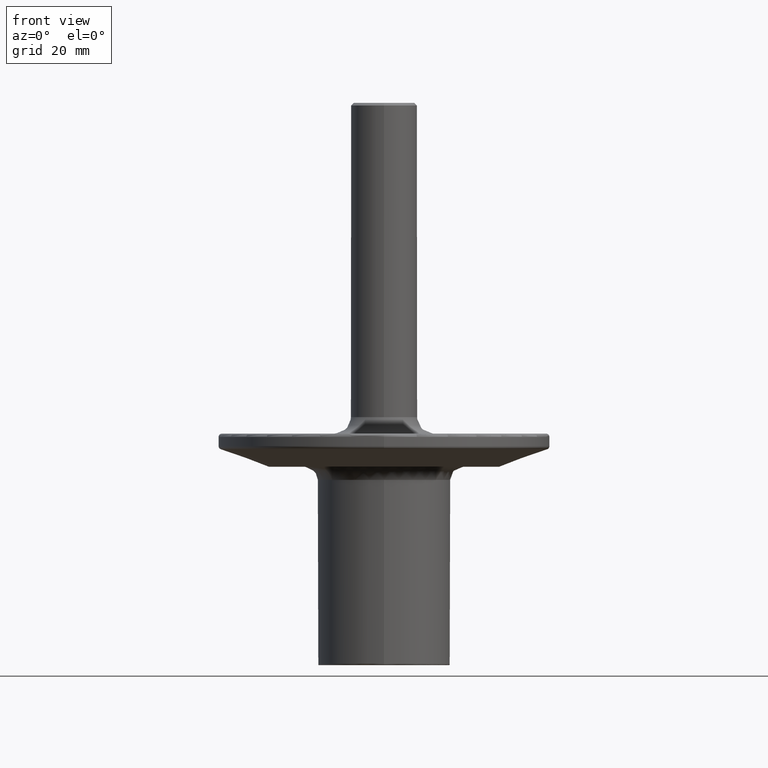
[diagram: clean part render]
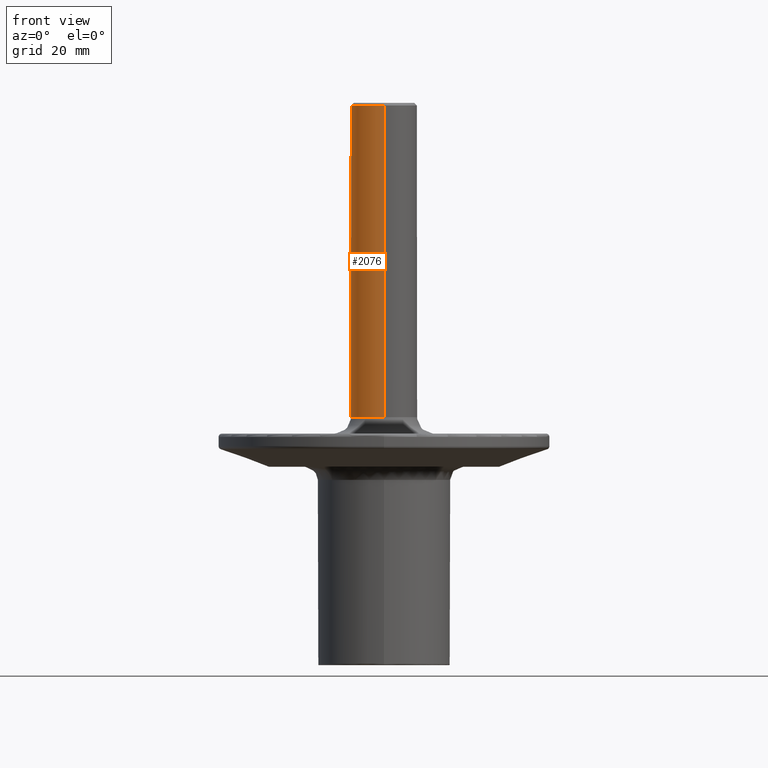
[diagram: same view with one face highlighted and labeled with its STEP entity id]
A machine part, front view. The second image highlights one B-rep face of the part: STEP entity #2076.
In plain terms, the highlighted cylindrical surface (edge-blend (fillet) strip) has radius 6.35 mm, axis along (0, 0, -1).
Its self-contained STEP definition (entity closure, byte-faithful):
#17 = ORIENTED_EDGE ( 'NONE', *, *, #1337, .T. ) ;
#75 = DIRECTION ( 'NONE',  ( 0.0000000000000000000, 0.0000000000000000000, 1.000000000000000000 ) ) ;
#96 = CARTESIAN_POINT ( 'NONE',  ( -0.2499999999999990000, -1.494481549475150200E-015, 1.875000000000000000 ) ) ;
#183 = CYLINDRICAL_SURFACE ( 'NONE', #2202, 0.2499999999999990000 ) ;
#359 = CARTESIAN_POINT ( 'NONE',  ( 0.0000000000000000000, -3.371550375615952900E-015, 4.230000000000000400 ) ) ;
#388 = VERTEX_POINT ( 'NONE', #1719 ) ;
#402 = AXIS2_PLACEMENT_3D ( 'NONE', #671, #75, #1415 ) ;
#460 = EDGE_CURVE ( 'NONE', #563, #388, #754, .T. ) ;
#505 = ORIENTED_EDGE ( 'NONE', *, *, #460, .T. ) ;
#526 = DIRECTION ( 'NONE',  ( 0.0000000000000000000, -1.000000000000000000, -1.092739197465709600E-015 ) ) ;
#545 = DIRECTION ( 'NONE',  ( 0.0000000000000000000, 1.000000000000000000, 0.0000000000000000000 ) ) ;
#563 = VERTEX_POINT ( 'NONE', #1660 ) ;
#566 = LINE ( 'NONE', #756, #1048 ) ;
#592 = VERTEX_POINT ( 'NONE', #96 ) ;
#628 = ORIENTED_EDGE ( 'NONE', *, *, #1898, .F. ) ;
#671 = CARTESIAN_POINT ( 'NONE',  ( -1.136491450489234400E-016, -1.485540871001791700E-015, 1.875000000000000000 ) ) ;
#694 = FACE_OUTER_BOUND ( 'NONE', #1863, .T. ) ;
#754 = CIRCLE ( 'NONE', #1770, 0.2499999999999990000 ) ;
#756 = CARTESIAN_POINT ( 'NONE',  ( 0.0000000000000000000, 0.2499999999999966100, 2.999999999999999600 ) ) ;
#761 = DIRECTION ( 'NONE',  ( 0.0000000000000000000, 7.970568263867499800E-016, -1.000000000000000000 ) ) ;
#857 = EDGE_CURVE ( 'NONE', #388, #1361, #566, .T. ) ;
#935 = CIRCLE ( 'NONE', #402, 0.2499999999999990300 ) ;
#952 = ORIENTED_EDGE ( 'NONE', *, *, #857, .T. ) ;
#1048 = VECTOR ( 'NONE', #2491, 39.37007874015748100 ) ;
#1155 = CARTESIAN_POINT ( 'NONE',  ( 3.061616997868370700E-017, -0.2500000000000005600, 1.875000000000000000 ) ) ;
#1175 = CIRCLE ( 'NONE', #1718, 0.2499999999999990000 ) ;
#1205 = VECTOR ( 'NONE', #1492, 39.37007874015748100 ) ;
#1327 = DIRECTION ( 'NONE',  ( 0.0000000000000000000, 1.000000000000000000, 0.0000000000000000000 ) ) ;
#1337 = EDGE_CURVE ( 'NONE', #1361, #592, #1175, .T. ) ;
#1361 = VERTEX_POINT ( 'NONE', #2044 ) ;
#1408 = LINE ( 'NONE', #1872, #1205 ) ;
#1415 = DIRECTION ( 'NONE',  ( 1.000000000000000000, 0.0000000000000000000, 0.0000000000000000000 ) ) ;
#1453 = DIRECTION ( 'NONE',  ( 1.492598692097504800E-031, -5.463695987328551100E-016, 1.000000000000000000 ) ) ;
#1459 = VERTEX_POINT ( 'NONE', #1155 ) ;
#1492 = DIRECTION ( 'NONE',  ( 0.0000000000000000000, 7.970568263867499800E-016, -1.000000000000000000 ) ) ;
#1530 = EDGE_CURVE ( 'NONE', #592, #1459, #935, .T. ) ;
#1660 = CARTESIAN_POINT ( 'NONE',  ( 3.061616997890732400E-017, -0.2500000000018282600, 4.230000000000000400 ) ) ;
#1683 = CARTESIAN_POINT ( 'NONE',  ( 0.0000000000000000000, -2.391170479160249800E-015, 2.999999999999999600 ) ) ;
#1695 = DIRECTION ( 'NONE',  ( 0.0000000000000000000, 7.970568263867499800E-016, -1.000000000000000000 ) ) ;
#1718 = AXIS2_PLACEMENT_3D ( 'NONE', #2210, #1453, #526 ) ;
#1719 = CARTESIAN_POINT ( 'NONE',  ( 0.0000000000000000000, 0.2500000000018222600, 4.230000000000000400 ) ) ;
#1770 = AXIS2_PLACEMENT_3D ( 'NONE', #359, #1695, #545 ) ;
#1863 = EDGE_LOOP ( 'NONE', ( #628, #505, #952, #17, #2316 ) ) ;
#1872 = CARTESIAN_POINT ( 'NONE',  ( 3.061616997868370700E-017, -0.2500000000000013900, 2.999999999999999600 ) ) ;
#1898 = EDGE_CURVE ( 'NONE', #563, #1459, #1408, .T. ) ;
#2044 = CARTESIAN_POINT ( 'NONE',  ( 2.038776371176236800E-047, 0.2499999999999975300, 1.875000000000000000 ) ) ;
#2076 = ADVANCED_FACE ( 'NONE', ( #694 ), #183, .T. ) ;
#2202 = AXIS2_PLACEMENT_3D ( 'NONE', #1683, #761, #1327 ) ;
#2210 = CARTESIAN_POINT ( 'NONE',  ( 0.0000000000000000000, -1.479173464485808100E-015, 1.875000000000000000 ) ) ;
#2316 = ORIENTED_EDGE ( 'NONE', *, *, #1530, .T. ) ;
#2491 = DIRECTION ( 'NONE',  ( 0.0000000000000000000, 7.970568263867499800E-016, -1.000000000000000000 ) ) ;